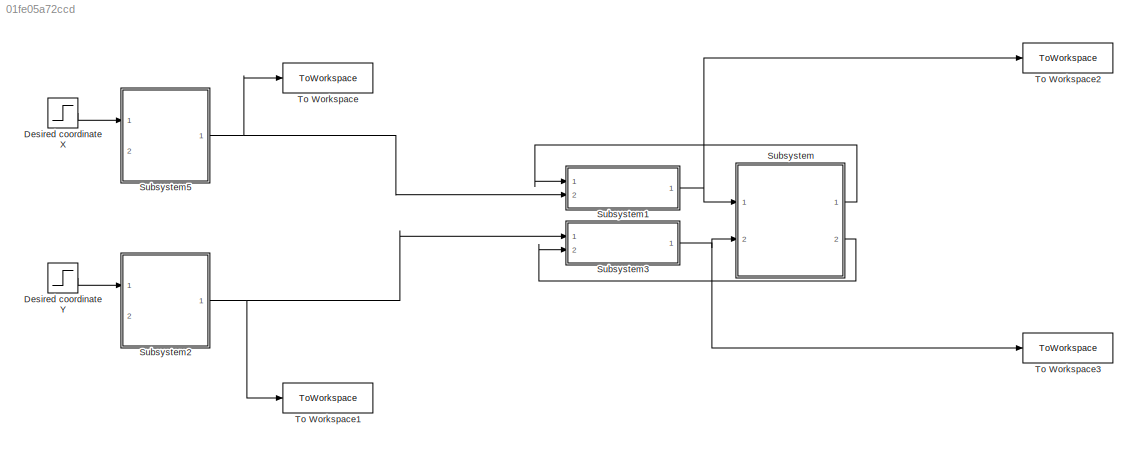
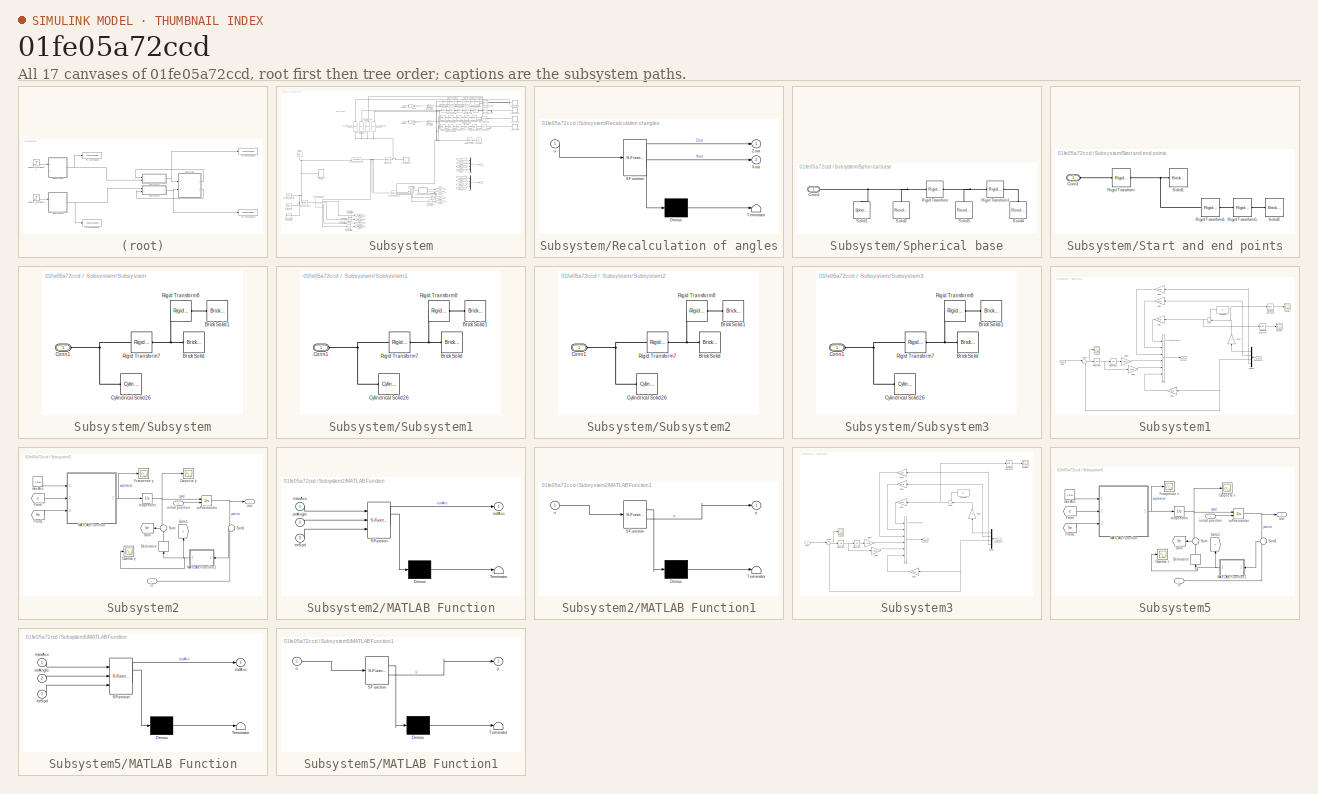
[diagram: thumbnail index - all 17 canvases of the model, root first then tree order]
MODEL slx_01fe05a72ccd
KIND model
CONFIG AbsTol = auto
CONFIG EnableMultiTasking = on
CONFIG FixedStep = auto
CONFIG InitFcn = Innertia_trajectory_code;
CONFIG MaxStep = 1e-4
CONFIG MinStep = auto
CONFIG RelTol = 1e-3
CONFIG SampleTimeConstraint = Unconstrained
CONFIG SolverName = ode23s
CONFIG StartTime = 0.0
CONFIG StopTime = 12
BLOCK [Step] Desired coordinate X
  After = -1
  Before = 1
  SampleTime = 0
  Time = 30
BLOCK [Step] Desired coordinate Y
  After = -1
  Before = 1
  SampleTime = 0
  Time = 30
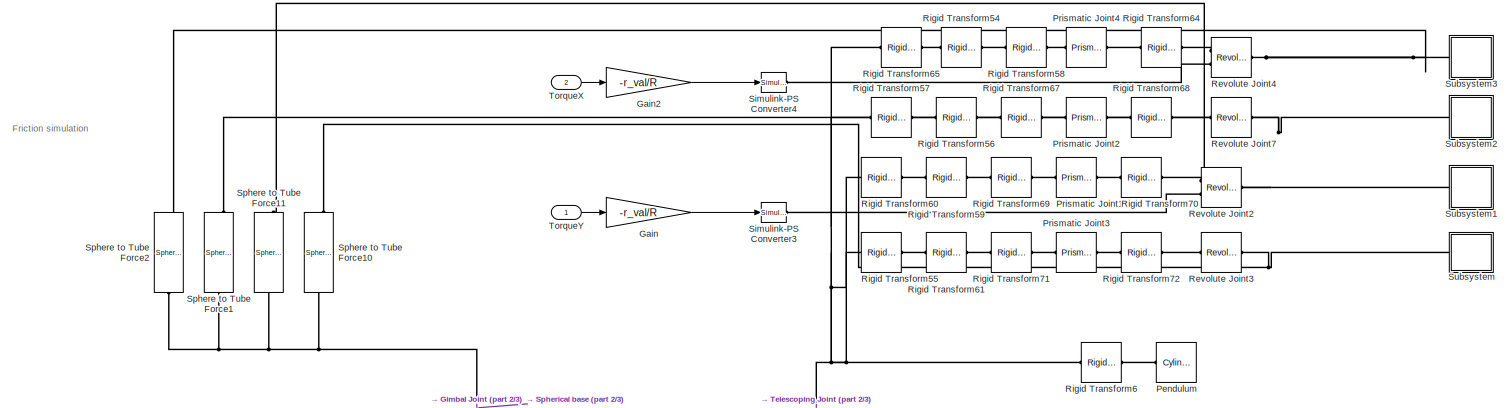
[diagram: Subsystem - part 1/3, full width, top band]
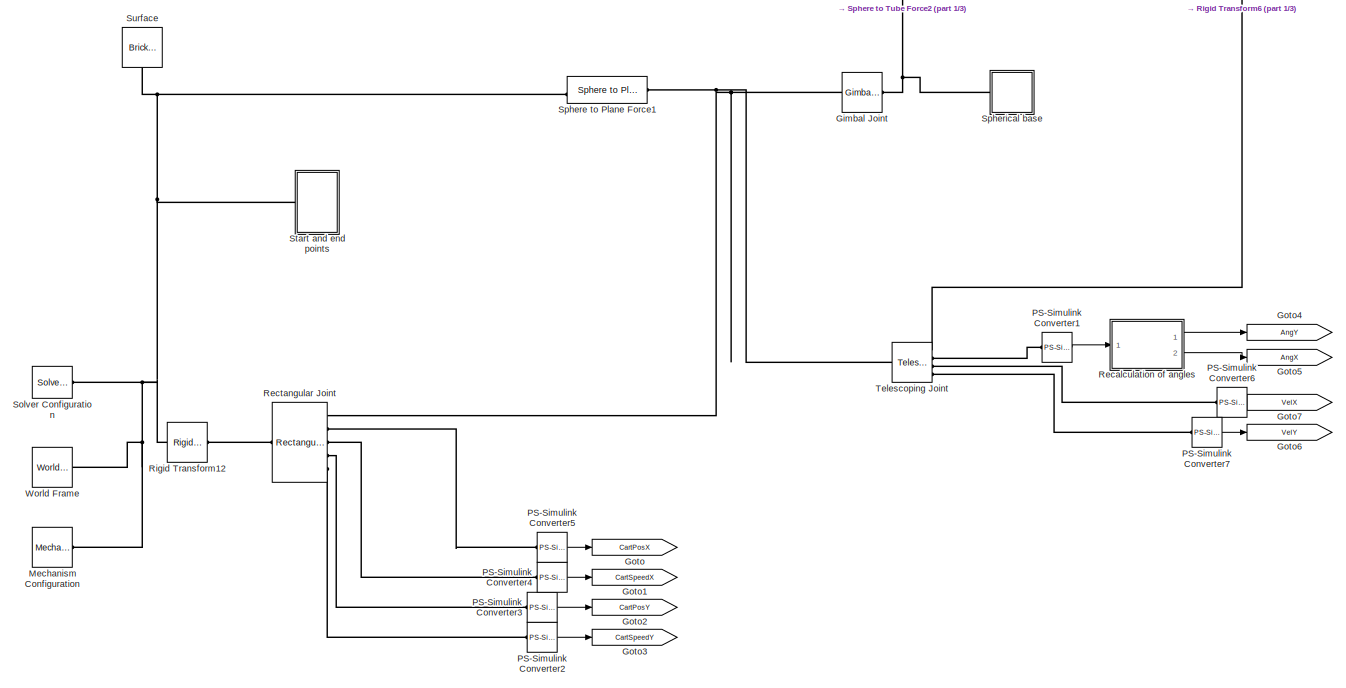
[diagram: Subsystem - part 2/3, bottom center region]
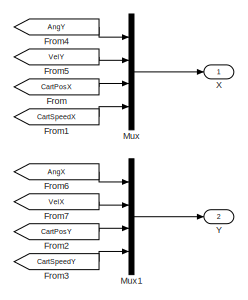
[diagram: Subsystem - part 3/3, middle right region]
BLOCK [SubSystem] Subsystem
  Ports = [2, 2]
  RequestExecContextInheritance = off
BLOCK [From] Subsystem/From
  GotoTag = CartPosX
  TagVisibility = global
BLOCK [From] Subsystem/From1
  GotoTag = CartSpeedX
  TagVisibility = global
BLOCK [From] Subsystem/From2
  GotoTag = CartPosY
  TagVisibility = global
BLOCK [From] Subsystem/From3
  GotoTag = CartSpeedY
  TagVisibility = global
BLOCK [From] Subsystem/From4
  GotoTag = AngY
  TagVisibility = global
BLOCK [From] Subsystem/From5
  GotoTag = VelY
  TagVisibility = global
BLOCK [From] Subsystem/From6
  GotoTag = AngX
  TagVisibility = global
BLOCK [From] Subsystem/From7
  GotoTag = VelX
  TagVisibility = global
BLOCK [Gain] Subsystem/Gain
  Gain = -r_val/R
BLOCK [Gain] Subsystem/Gain2
  Gain = -r_val/R
BLOCK [Reference] Subsystem/Gimbal Joint  REF=sm_lib/Joints/Gimbal Joint
  Ports = [0, 0, 0, 0, 0, 1, 1]
  SourceBlock = sm_lib/Joints/Gimbal Joint
  SourceProductBaseCode = MS
  SourceType = Gimbal Joint
BLOCK [Goto] Subsystem/Goto
  GotoTag = CartPosX
  TagVisibility = global
BLOCK [Goto] Subsystem/Goto1
  GotoTag = CartSpeedX
  TagVisibility = global
BLOCK [Goto] Subsystem/Goto2
  GotoTag = CartPosY
  TagVisibility = global
BLOCK [Goto] Subsystem/Goto3
  GotoTag = CartSpeedY
  TagVisibility = global
BLOCK [Goto] Subsystem/Goto4
  GotoTag = AngY
  TagVisibility = global
BLOCK [Goto] Subsystem/Goto5
  GotoTag = AngX
  TagVisibility = global
BLOCK [Goto] Subsystem/Goto6
  GotoTag = VelY
  TagVisibility = global
BLOCK [Goto] Subsystem/Goto7
  GotoTag = VelX
  TagVisibility = global
BLOCK [Reference] Subsystem/Mechanism Configuration  REF=sm_lib/Utilities/Mechanism
Configuration
  Ports = [0, 0, 0, 0, 0, 0, 1]
  SourceBlock = sm_lib/Utilities/Mechanism\nConfiguration
  SourceProductBaseCode = MS
  SourceType = Mechanism\nConfiguration
BLOCK [Mux] Subsystem/Mux
  DisplayOption = bar
  Ports = [4, 1]
BLOCK [Mux] Subsystem/Mux1
  DisplayOption = bar
  Ports = [4, 1]
BLOCK [Reference] Subsystem/PS-Simulink Converter1  REF=nesl_utility/PS-Simulink
Converter
  Ports = [0, 1, 0, 0, 0, 1]
  SourceBlock = nesl_utility/PS-Simulink\nConverter
  SourceProductBaseCode = PW,SS
  SourceType = PS-Simulink\nConverter
BLOCK [Reference] Subsystem/PS-Simulink Converter2  REF=nesl_utility/PS-Simulink
Converter
  Ports = [0, 1, 0, 0, 0, 1]
  SourceBlock = nesl_utility/PS-Simulink\nConverter
  SourceProductBaseCode = PW,SS
  SourceType = PS-Simulink\nConverter
BLOCK [Reference] Subsystem/PS-Simulink Converter3  REF=nesl_utility/PS-Simulink
Converter
  Ports = [0, 1, 0, 0, 0, 1]
  SourceBlock = nesl_utility/PS-Simulink\nConverter
  SourceProductBaseCode = PW,SS
  SourceType = PS-Simulink\nConverter
BLOCK [Reference] Subsystem/PS-Simulink Converter4  REF=nesl_utility/PS-Simulink
Converter
  Ports = [0, 1, 0, 0, 0, 1]
  SourceBlock = nesl_utility/PS-Simulink\nConverter
  SourceProductBaseCode = PW,SS
  SourceType = PS-Simulink\nConverter
BLOCK [Reference] Subsystem/PS-Simulink Converter5  REF=nesl_utility/PS-Simulink
Converter
  Ports = [0, 1, 0, 0, 0, 1]
  SourceBlock = nesl_utility/PS-Simulink\nConverter
  SourceProductBaseCode = PW,SS
  SourceType = PS-Simulink\nConverter
BLOCK [Reference] Subsystem/PS-Simulink Converter6  REF=nesl_utility/PS-Simulink
Converter
  Ports = [0, 1, 0, 0, 0, 1]
  SourceBlock = nesl_utility/PS-Simulink\nConverter
  SourceProductBaseCode = PW,SS
  SourceType = PS-Simulink\nConverter
BLOCK [Reference] Subsystem/PS-Simulink Converter7  REF=nesl_utility/PS-Simulink
Converter
  Ports = [0, 1, 0, 0, 0, 1]
  SourceBlock = nesl_utility/PS-Simulink\nConverter
  SourceProductBaseCode = PW,SS
  SourceType = PS-Simulink\nConverter
BLOCK [Reference] Subsystem/Pendulum  REF=sm_lib/Body Elements/Cylindrical Solid
  NameLocation = top
  Ports = [0, 0, 0, 0, 0, 0, 1]
  SourceBlock = sm_lib/Body Elements/Cylindrical Solid
  SourceProductBaseCode = MS
  SourceType = Cylindrical Solid
BLOCK [Reference] Subsystem/Prismatic Joint1  REF=sm_lib/Joints/Prismatic
Joint
  Ports = [0, 0, 0, 0, 0, 1, 1]
  SourceBlock = sm_lib/Joints/Prismatic\nJoint
  SourceProductBaseCode = MS
  SourceType = Prismatic\nJoint
BLOCK [Reference] Subsystem/Prismatic Joint2  REF=sm_lib/Joints/Prismatic
Joint
  Ports = [0, 0, 0, 0, 0, 1, 1]
  SourceBlock = sm_lib/Joints/Prismatic\nJoint
  SourceProductBaseCode = MS
  SourceType = Prismatic\nJoint
BLOCK [Reference] Subsystem/Prismatic Joint3  REF=sm_lib/Joints/Prismatic
Joint
  Ports = [0, 0, 0, 0, 0, 1, 1]
  SourceBlock = sm_lib/Joints/Prismatic\nJoint
  SourceProductBaseCode = MS
  SourceType = Prismatic\nJoint
BLOCK [Reference] Subsystem/Prismatic Joint4  REF=sm_lib/Joints/Prismatic
Joint
  Ports = [0, 0, 0, 0, 0, 1, 1]
  SourceBlock = sm_lib/Joints/Prismatic\nJoint
  SourceProductBaseCode = MS
  SourceType = Prismatic\nJoint
BLOCK [SubSystem] Subsystem/Recalculation of angles
  ErrorFcn = Stateflow.Translate.translate
  PermitHierarchicalResolution = ExplicitOnly
  Ports = [1, 2]
  RequestExecContextInheritance = off
  SFBlockType = MATLAB Function
  TreatAsAtomicUnit = on
BLOCK [Demux] Subsystem/Recalculation of angles/ Demux 
  Outputs = 1
  Ports = [1, 1]
BLOCK [S-Function] Subsystem/Recalculation of angles/ SFunction 
  EnableBusSupport = on
  FunctionName = sf_sfun
  PortCounts = [1 3]
  Ports = [1, 3]
  SFcnIsStateOwnerBlock = off
  SFunctionDeploymentMode = off
  Tag = Stateflow S-Function 4
BLOCK [Terminator] Subsystem/Recalculation of angles/ Terminator 
BLOCK [Outport] Subsystem/Recalculation of angles/Xout
  Port = 2
  VectorParamsAs1DForOutWhenUnconnected = off
BLOCK [Outport] Subsystem/Recalculation of angles/Zout
  VectorParamsAs1DForOutWhenUnconnected = off
BLOCK [Inport] Subsystem/Recalculation of angles/u
BLOCK [Reference] Subsystem/Rectangular Joint  REF=sm_lib/Joints/Rectangular
Joint
  Ports = [0, 0, 0, 0, 0, 1, 5]
  SourceBlock = sm_lib/Joints/Rectangular\nJoint
  SourceProductBaseCode = MS
  SourceType = Rectangular\nJoint
BLOCK [Reference] Subsystem/Revolute Joint2  REF=sm_lib/Joints/Revolute Joint
  Ports = [0, 0, 0, 0, 0, 2, 1]
  SourceBlock = sm_lib/Joints/Revolute Joint
  SourceProductBaseCode = MS
  SourceType = Revolute Joint
BLOCK [Reference] Subsystem/Revolute Joint3  REF=sm_lib/Joints/Revolute Joint
  Ports = [0, 0, 0, 0, 0, 1, 1]
  SourceBlock = sm_lib/Joints/Revolute Joint
  SourceProductBaseCode = MS
  SourceType = Revolute Joint
BLOCK [Reference] Subsystem/Revolute Joint4  REF=sm_lib/Joints/Revolute Joint
  Ports = [0, 0, 0, 0, 0, 2, 1]
  SourceBlock = sm_lib/Joints/Revolute Joint
  SourceProductBaseCode = MS
  SourceType = Revolute Joint
BLOCK [Reference] Subsystem/Revolute Joint7  REF=sm_lib/Joints/Revolute Joint
  Ports = [0, 0, 0, 0, 0, 1, 1]
  SourceBlock = sm_lib/Joints/Revolute Joint
  SourceProductBaseCode = MS
  SourceType = Revolute Joint
BLOCK [Reference] Subsystem/Rigid Transform12  REF=sm_lib/Frames and
Transforms/Rigid
Transform
  Ports = [0, 0, 0, 0, 0, 1, 1]
  SourceBlock = sm_lib/Frames and\nTransforms/Rigid\nTransform
  SourceProductBaseCode = MS
  SourceType = Rigid\nTransform
BLOCK [Reference] Subsystem/Rigid Transform54  REF=sm_lib/Frames and
Transforms/Rigid
Transform
  Ports = [0, 0, 0, 0, 0, 1, 1]
  SourceBlock = sm_lib/Frames and\nTransforms/Rigid\nTransform
  SourceProductBaseCode = MS
  SourceType = Rigid\nTransform
BLOCK [Reference] Subsystem/Rigid Transform55  REF=sm_lib/Frames and
Transforms/Rigid
Transform
  Ports = [0, 0, 0, 0, 0, 1, 1]
  SourceBlock = sm_lib/Frames and\nTransforms/Rigid\nTransform
  SourceProductBaseCode = MS
  SourceType = Rigid\nTransform
BLOCK [Reference] Subsystem/Rigid Transform56  REF=sm_lib/Frames and
Transforms/Rigid
Transform
  Ports = [0, 0, 0, 0, 0, 1, 1]
  SourceBlock = sm_lib/Frames and\nTransforms/Rigid\nTransform
  SourceProductBaseCode = MS
  SourceType = Rigid\nTransform
BLOCK [Reference] Subsystem/Rigid Transform57  REF=sm_lib/Frames and
Transforms/Rigid
Transform
  Ports = [0, 0, 0, 0, 0, 1, 1]
  SourceBlock = sm_lib/Frames and\nTransforms/Rigid\nTransform
  SourceProductBaseCode = MS
  SourceType = Rigid\nTransform
BLOCK [Reference] Subsystem/Rigid Transform58  REF=sm_lib/Frames and
Transforms/Rigid
Transform
  Ports = [0, 0, 0, 0, 0, 1, 1]
  SourceBlock = sm_lib/Frames and\nTransforms/Rigid\nTransform
  SourceProductBaseCode = MS
  SourceType = Rigid\nTransform
BLOCK [Reference] Subsystem/Rigid Transform59  REF=sm_lib/Frames and
Transforms/Rigid
Transform
  Ports = [0, 0, 0, 0, 0, 1, 1]
  SourceBlock = sm_lib/Frames and\nTransforms/Rigid\nTransform
  SourceProductBaseCode = MS
  SourceType = Rigid\nTransform
BLOCK [Reference] Subsystem/Rigid Transform6  REF=sm_lib/Frames and
Transforms/Rigid
Transform
  Ports = [0, 0, 0, 0, 0, 1, 1]
  SourceBlock = sm_lib/Frames and\nTransforms/Rigid\nTransform
  SourceProductBaseCode = MS
  SourceType = Rigid\nTransform
BLOCK [Reference] Subsystem/Rigid Transform60  REF=sm_lib/Frames and
Transforms/Rigid
Transform
  Ports = [0, 0, 0, 0, 0, 1, 1]
  SourceBlock = sm_lib/Frames and\nTransforms/Rigid\nTransform
  SourceProductBaseCode = MS
  SourceType = Rigid\nTransform
BLOCK [Reference] Subsystem/Rigid Transform61  REF=sm_lib/Frames and
Transforms/Rigid
Transform
  Ports = [0, 0, 0, 0, 0, 1, 1]
  SourceBlock = sm_lib/Frames and\nTransforms/Rigid\nTransform
  SourceProductBaseCode = MS
  SourceType = Rigid\nTransform
BLOCK [Reference] Subsystem/Rigid Transform64  REF=sm_lib/Frames and
Transforms/Rigid
Transform
  Ports = [0, 0, 0, 0, 0, 1, 1]
  SourceBlock = sm_lib/Frames and\nTransforms/Rigid\nTransform
  SourceProductBaseCode = MS
  SourceType = Rigid\nTransform
BLOCK [Reference] Subsystem/Rigid Transform65  REF=sm_lib/Frames and
Transforms/Rigid
Transform
  Ports = [0, 0, 0, 0, 0, 1, 1]
  SourceBlock = sm_lib/Frames and\nTransforms/Rigid\nTransform
  SourceProductBaseCode = MS
  SourceType = Rigid\nTransform
BLOCK [Reference] Subsystem/Rigid Transform67  REF=sm_lib/Frames and
Transforms/Rigid
Transform
  Ports = [0, 0, 0, 0, 0, 1, 1]
  SourceBlock = sm_lib/Frames and\nTransforms/Rigid\nTransform
  SourceProductBaseCode = MS
  SourceType = Rigid\nTransform
BLOCK [Reference] Subsystem/Rigid Transform68  REF=sm_lib/Frames and
Transforms/Rigid
Transform
  Ports = [0, 0, 0, 0, 0, 1, 1]
  SourceBlock = sm_lib/Frames and\nTransforms/Rigid\nTransform
  SourceProductBaseCode = MS
  SourceType = Rigid\nTransform
BLOCK [Reference] Subsystem/Rigid Transform69  REF=sm_lib/Frames and
Transforms/Rigid
Transform
  Ports = [0, 0, 0, 0, 0, 1, 1]
  SourceBlock = sm_lib/Frames and\nTransforms/Rigid\nTransform
  SourceProductBaseCode = MS
  SourceType = Rigid\nTransform
BLOCK [Reference] Subsystem/Rigid Transform70  REF=sm_lib/Frames and
Transforms/Rigid
Transform
  Ports = [0, 0, 0, 0, 0, 1, 1]
  SourceBlock = sm_lib/Frames and\nTransforms/Rigid\nTransform
  SourceProductBaseCode = MS
  SourceType = Rigid\nTransform
BLOCK [Reference] Subsystem/Rigid Transform71  REF=sm_lib/Frames and
Transforms/Rigid
Transform
  Ports = [0, 0, 0, 0, 0, 1, 1]
  SourceBlock = sm_lib/Frames and\nTransforms/Rigid\nTransform
  SourceProductBaseCode = MS
  SourceType = Rigid\nTransform
BLOCK [Reference] Subsystem/Rigid Transform72  REF=sm_lib/Frames and
Transforms/Rigid
Transform
  Ports = [0, 0, 0, 0, 0, 1, 1]
  SourceBlock = sm_lib/Frames and\nTransforms/Rigid\nTransform
  SourceProductBaseCode = MS
  SourceType = Rigid\nTransform
BLOCK [Reference] Subsystem/Simulink-PS Converter3  REF=nesl_utility/Simulink-PS
Converter
  Ports = [1, 0, 0, 0, 0, 0, 1]
  SourceBlock = nesl_utility/Simulink-PS\nConverter
  SourceProductBaseCode = PW,SS
  SourceType = Simulink-PS\nConverter
BLOCK [Reference] Subsystem/Simulink-PS Converter4  REF=nesl_utility/Simulink-PS
Converter
  Ports = [1, 0, 0, 0, 0, 0, 1]
  SourceBlock = nesl_utility/Simulink-PS\nConverter
  SourceProductBaseCode = PW,SS
  SourceType = Simulink-PS\nConverter
BLOCK [Reference] Subsystem/Solver Configuration  REF=nesl_utility/Solver
Configuration
  Ports = [0, 0, 0, 0, 0, 0, 1]
  SourceBlock = nesl_utility/Solver\nConfiguration
  SourceProductBaseCode = PW,SS
  SourceType = Solver\nConfiguration
BLOCK [Reference] Subsystem/Sphere to Plane Force1  REF=Contact_Forces_Lib/3D/Sphere to Plane Force
  Ports = [0, 1, 0, 0, 0, 1, 1]
  SourceBlock = Contact_Forces_Lib/3D/Sphere to Plane Force
  SourceProductName = Simscape Multibody Contact Forces Library
  SourceType = Sphere to Plane Force
BLOCK [Reference] Subsystem/Sphere to Tube Force1  REF=Contact_Forces_Lib/3D/Sphere to Tube Force
  NameLocation = left
  Ports = [0, 1, 0, 0, 0, 1, 1]
  SourceBlock = Contact_Forces_Lib/3D/Sphere to Tube Force
  SourceProductName = Simscape Multibody Contact Forces Library
  SourceType = Sphere to Tube Force
BLOCK [Reference] Subsystem/Sphere to Tube Force10  REF=Contact_Forces_Lib/3D/Sphere to Tube Force
  NameLocation = left
  Ports = [0, 1, 0, 0, 0, 1, 1]
  SourceBlock = Contact_Forces_Lib/3D/Sphere to Tube Force
  SourceProductName = Simscape Multibody Contact Forces Library
  SourceType = Sphere to Tube Force
BLOCK [Reference] Subsystem/Sphere to Tube Force11  REF=Contact_Forces_Lib/3D/Sphere to Tube Force
  NameLocation = left
  Ports = [0, 1, 0, 0, 0, 1, 1]
  SourceBlock = Contact_Forces_Lib/3D/Sphere to Tube Force
  SourceProductName = Simscape Multibody Contact Forces Library
  SourceType = Sphere to Tube Force
BLOCK [Reference] Subsystem/Sphere to Tube Force2  REF=Contact_Forces_Lib/3D/Sphere to Tube Force
  NameLocation = left
  Ports = [0, 1, 0, 0, 0, 1, 1]
  SourceBlock = Contact_Forces_Lib/3D/Sphere to Tube Force
  SourceProductName = Simscape Multibody Contact Forces Library
  SourceType = Sphere to Tube Force
BLOCK [SubSystem] Subsystem/Spherical base
  Ports = [0, 0, 0, 0, 0, 1]
  RequestExecContextInheritance = off
BLOCK [PMIOPort] Subsystem/Spherical base/Conn1
  Side = Left
BLOCK [Reference] Subsystem/Spherical base/Rigid Transform  REF=sm_lib/Frames and
Transforms/Rigid
Transform
  Ports = [0, 0, 0, 0, 0, 1, 1]
  SourceBlock = sm_lib/Frames and\nTransforms/Rigid\nTransform
  SourceProductBaseCode = MS
  SourceType = Rigid\nTransform
BLOCK [Reference] Subsystem/Spherical base/Rigid Transform1  REF=sm_lib/Frames and
Transforms/Rigid
Transform
  Ports = [0, 0, 0, 0, 0, 1, 1]
  SourceBlock = sm_lib/Frames and\nTransforms/Rigid\nTransform
  SourceProductBaseCode = MS
  SourceType = Rigid\nTransform
BLOCK [Reference] Subsystem/Spherical base/Solid1  REF=sm_lib/Body Elements/Spherical Solid
  NameLocation = right
  Ports = [0, 0, 0, 0, 0, 0, 1]
  SourceBlock = sm_lib/Body Elements/Spherical Solid
  SourceProductBaseCode = MS
  SourceType = Spherical Solid
BLOCK [Reference] Subsystem/Spherical base/Solid2  REF=sm_lib/Body Elements/Revolved Solid
  NameLocation = right
  Ports = [0, 0, 0, 0, 0, 0, 1]
  SourceBlock = sm_lib/Body Elements/Revolved Solid
  SourceProductBaseCode = MS
  SourceType = Revolved Solid
BLOCK [Reference] Subsystem/Spherical base/Solid3  REF=sm_lib/Body Elements/Revolved Solid
  NameLocation = right
  Ports = [0, 0, 0, 0, 0, 0, 1]
  SourceBlock = sm_lib/Body Elements/Revolved Solid
  SourceProductBaseCode = MS
  SourceType = Revolved Solid
BLOCK [Reference] Subsystem/Spherical base/Solid4  REF=sm_lib/Body Elements/Revolved Solid
  NameLocation = right
  Ports = [0, 0, 0, 0, 0, 0, 1]
  SourceBlock = sm_lib/Body Elements/Revolved Solid
  SourceProductBaseCode = MS
  SourceType = Revolved Solid
BLOCK [SubSystem] Subsystem/Start and end points
  Ports = [0, 0, 0, 0, 0, 1]
  RequestExecContextInheritance = off
BLOCK [PMIOPort] Subsystem/Start and end points/Conn1
  Side = Left
BLOCK [Reference] Subsystem/Start and end points/Rigid Transform  REF=sm_lib/Frames and
Transforms/Rigid
Transform
  Ports = [0, 0, 0, 0, 0, 1, 1]
  SourceBlock = sm_lib/Frames and\nTransforms/Rigid\nTransform
  SourceProductBaseCode = MS
  SourceType = Rigid\nTransform
BLOCK [Reference] Subsystem/Start and end points/Rigid Transform1  REF=sm_lib/Frames and
Transforms/Rigid
Transform
  Ports = [0, 0, 0, 0, 0, 1, 1]
  SourceBlock = sm_lib/Frames and\nTransforms/Rigid\nTransform
  SourceProductBaseCode = MS
  SourceType = Rigid\nTransform
BLOCK [Reference] Subsystem/Start and end points/Rigid Transform5  REF=sm_lib/Frames and
Transforms/Rigid
Transform
  Ports = [0, 0, 0, 0, 0, 1, 1]
  SourceBlock = sm_lib/Frames and\nTransforms/Rigid\nTransform
  SourceProductBaseCode = MS
  SourceType = Rigid\nTransform
BLOCK [Reference] Subsystem/Start and end points/Solid1  REF=sm_lib/Body Elements/Brick Solid
  NameLocation = top
  Ports = [0, 0, 0, 0, 0, 0, 1]
  SourceBlock = sm_lib/Body Elements/Brick Solid
  SourceProductBaseCode = MS
  SourceType = Brick Solid
BLOCK [Reference] Subsystem/Start and end points/Solid2  REF=sm_lib/Body Elements/Brick Solid
  NameLocation = top
  Ports = [0, 0, 0, 0, 0, 0, 1]
  SourceBlock = sm_lib/Body Elements/Brick Solid
  SourceProductBaseCode = MS
  SourceType = Brick Solid
BLOCK [SubSystem] Subsystem/Subsystem
  Ports = [0, 0, 0, 0, 0, 1]
  RequestExecContextInheritance = off
BLOCK [Reference] Subsystem/Subsystem/Brick Solid  REF=sm_lib/Body Elements/Brick Solid
  NameLocation = top
  Ports = [0, 0, 0, 0, 0, 0, 1]
  SourceBlock = sm_lib/Body Elements/Brick Solid
  SourceProductBaseCode = MS
  SourceType = Brick Solid
BLOCK [Reference] Subsystem/Subsystem/Brick Solid1  REF=sm_lib/Body Elements/Brick Solid
  NameLocation = top
  Ports = [0, 0, 0, 0, 0, 0, 1]
  SourceBlock = sm_lib/Body Elements/Brick Solid
  SourceProductBaseCode = MS
  SourceType = Brick Solid
BLOCK [PMIOPort] Subsystem/Subsystem/Conn1
  Side = Left
BLOCK [Reference] Subsystem/Subsystem/Cylindrical Solid26  REF=sm_lib/Body Elements/Cylindrical Solid
  NameLocation = top
  Ports = [0, 0, 0, 0, 0, 0, 1]
  SourceBlock = sm_lib/Body Elements/Cylindrical Solid
  SourceProductBaseCode = MS
  SourceType = Cylindrical Solid
BLOCK [Reference] Subsystem/Subsystem/Rigid Transform7  REF=sm_lib/Frames and
Transforms/Rigid
Transform
  Ports = [0, 0, 0, 0, 0, 1, 1]
  SourceBlock = sm_lib/Frames and\nTransforms/Rigid\nTransform
  SourceProductBaseCode = MS
  SourceType = Rigid\nTransform
BLOCK [Reference] Subsystem/Subsystem/Rigid Transform8  REF=sm_lib/Frames and
Transforms/Rigid
Transform
  Ports = [0, 0, 0, 0, 0, 1, 1]
  SourceBlock = sm_lib/Frames and\nTransforms/Rigid\nTransform
  SourceProductBaseCode = MS
  SourceType = Rigid\nTransform
BLOCK [SubSystem] Subsystem/Subsystem1
  Ports = [0, 0, 0, 0, 0, 1]
  RequestExecContextInheritance = off
BLOCK [Reference] Subsystem/Subsystem1/Brick Solid  REF=sm_lib/Body Elements/Brick Solid
  NameLocation = top
  Ports = [0, 0, 0, 0, 0, 0, 1]
  SourceBlock = sm_lib/Body Elements/Brick Solid
  SourceProductBaseCode = MS
  SourceType = Brick Solid
BLOCK [Reference] Subsystem/Subsystem1/Brick Solid1  REF=sm_lib/Body Elements/Brick Solid
  NameLocation = top
  Ports = [0, 0, 0, 0, 0, 0, 1]
  SourceBlock = sm_lib/Body Elements/Brick Solid
  SourceProductBaseCode = MS
  SourceType = Brick Solid
BLOCK [PMIOPort] Subsystem/Subsystem1/Conn1
  Side = Left
BLOCK [Reference] Subsystem/Subsystem1/Cylindrical Solid26  REF=sm_lib/Body Elements/Cylindrical Solid
  NameLocation = top
  Ports = [0, 0, 0, 0, 0, 0, 1]
  SourceBlock = sm_lib/Body Elements/Cylindrical Solid
  SourceProductBaseCode = MS
  SourceType = Cylindrical Solid
BLOCK [Reference] Subsystem/Subsystem1/Rigid Transform7  REF=sm_lib/Frames and
Transforms/Rigid
Transform
  Ports = [0, 0, 0, 0, 0, 1, 1]
  SourceBlock = sm_lib/Frames and\nTransforms/Rigid\nTransform
  SourceProductBaseCode = MS
  SourceType = Rigid\nTransform
BLOCK [Reference] Subsystem/Subsystem1/Rigid Transform8  REF=sm_lib/Frames and
Transforms/Rigid
Transform
  Ports = [0, 0, 0, 0, 0, 1, 1]
  SourceBlock = sm_lib/Frames and\nTransforms/Rigid\nTransform
  SourceProductBaseCode = MS
  SourceType = Rigid\nTransform
BLOCK [SubSystem] Subsystem/Subsystem2
  Ports = [0, 0, 0, 0, 0, 1]
  RequestExecContextInheritance = off
BLOCK [Reference] Subsystem/Subsystem2/Brick Solid  REF=sm_lib/Body Elements/Brick Solid
  NameLocation = top
  Ports = [0, 0, 0, 0, 0, 0, 1]
  SourceBlock = sm_lib/Body Elements/Brick Solid
  SourceProductBaseCode = MS
  SourceType = Brick Solid
BLOCK [Reference] Subsystem/Subsystem2/Brick Solid1  REF=sm_lib/Body Elements/Brick Solid
  NameLocation = top
  Ports = [0, 0, 0, 0, 0, 0, 1]
  SourceBlock = sm_lib/Body Elements/Brick Solid
  SourceProductBaseCode = MS
  SourceType = Brick Solid
BLOCK [PMIOPort] Subsystem/Subsystem2/Conn1
  Side = Left
BLOCK [Reference] Subsystem/Subsystem2/Cylindrical Solid26  REF=sm_lib/Body Elements/Cylindrical Solid
  NameLocation = top
  Ports = [0, 0, 0, 0, 0, 0, 1]
  SourceBlock = sm_lib/Body Elements/Cylindrical Solid
  SourceProductBaseCode = MS
  SourceType = Cylindrical Solid
BLOCK [Reference] Subsystem/Subsystem2/Rigid Transform7  REF=sm_lib/Frames and
Transforms/Rigid
Transform
  Ports = [0, 0, 0, 0, 0, 1, 1]
  SourceBlock = sm_lib/Frames and\nTransforms/Rigid\nTransform
  SourceProductBaseCode = MS
  SourceType = Rigid\nTransform
BLOCK [Reference] Subsystem/Subsystem2/Rigid Transform8  REF=sm_lib/Frames and
Transforms/Rigid
Transform
  Ports = [0, 0, 0, 0, 0, 1, 1]
  SourceBlock = sm_lib/Frames and\nTransforms/Rigid\nTransform
  SourceProductBaseCode = MS
  SourceType = Rigid\nTransform
BLOCK [SubSystem] Subsystem/Subsystem3
  Ports = [0, 0, 0, 0, 0, 1]
  RequestExecContextInheritance = off
BLOCK [Reference] Subsystem/Subsystem3/Brick Solid  REF=sm_lib/Body Elements/Brick Solid
  NameLocation = top
  Ports = [0, 0, 0, 0, 0, 0, 1]
  SourceBlock = sm_lib/Body Elements/Brick Solid
  SourceProductBaseCode = MS
  SourceType = Brick Solid
BLOCK [Reference] Subsystem/Subsystem3/Brick Solid1  REF=sm_lib/Body Elements/Brick Solid
  NameLocation = top
  Ports = [0, 0, 0, 0, 0, 0, 1]
  SourceBlock = sm_lib/Body Elements/Brick Solid
  SourceProductBaseCode = MS
  SourceType = Brick Solid
BLOCK [PMIOPort] Subsystem/Subsystem3/Conn1
  Side = Left
BLOCK [Reference] Subsystem/Subsystem3/Cylindrical Solid26  REF=sm_lib/Body Elements/Cylindrical Solid
  NameLocation = top
  Ports = [0, 0, 0, 0, 0, 0, 1]
  SourceBlock = sm_lib/Body Elements/Cylindrical Solid
  SourceProductBaseCode = MS
  SourceType = Cylindrical Solid
BLOCK [Reference] Subsystem/Subsystem3/Rigid Transform7  REF=sm_lib/Frames and
Transforms/Rigid
Transform
  Ports = [0, 0, 0, 0, 0, 1, 1]
  SourceBlock = sm_lib/Frames and\nTransforms/Rigid\nTransform
  SourceProductBaseCode = MS
  SourceType = Rigid\nTransform
BLOCK [Reference] Subsystem/Subsystem3/Rigid Transform8  REF=sm_lib/Frames and
Transforms/Rigid
Transform
  Ports = [0, 0, 0, 0, 0, 1, 1]
  SourceBlock = sm_lib/Frames and\nTransforms/Rigid\nTransform
  SourceProductBaseCode = MS
  SourceType = Rigid\nTransform
BLOCK [Reference] Subsystem/Surface  REF=sm_lib/Body Elements/Brick Solid
  NameLocation = left
  Ports = [0, 0, 0, 0, 0, 0, 1]
  SourceBlock = sm_lib/Body Elements/Brick Solid
  SourceProductBaseCode = MS
  SourceType = Brick Solid
BLOCK [Reference] Subsystem/Telescoping Joint  REF=sm_lib/Joints/Telescoping
Joint
  Ports = [0, 0, 0, 0, 0, 1, 4]
  SourceBlock = sm_lib/Joints/Telescoping\nJoint
  SourceProductBaseCode = MS
  SourceType = Telescoping\nJoint
BLOCK [Inport] Subsystem/TorqueX
  Port = 2
BLOCK [Inport] Subsystem/TorqueY
BLOCK [Reference] Subsystem/World Frame  REF=sm_lib/Frames and
Transforms/World Frame
  Ports = [0, 0, 0, 0, 0, 0, 1]
  SourceBlock = sm_lib/Frames and\nTransforms/World Frame
  SourceProductBaseCode = MS
  SourceType = World Frame
BLOCK [Outport] Subsystem/X
  VectorParamsAs1DForOutWhenUnconnected = off
BLOCK [Outport] Subsystem/Y
  Port = 2
  VectorParamsAs1DForOutWhenUnconnected = off
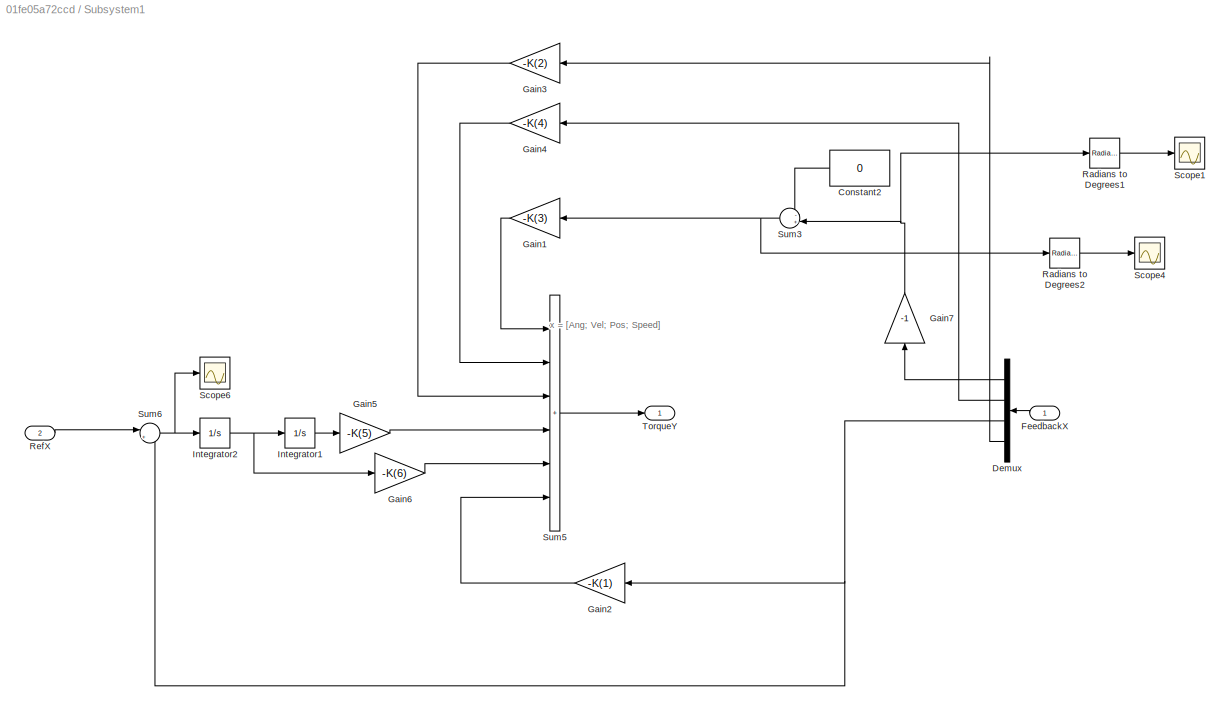
BLOCK [SubSystem] Subsystem1
  Ports = [2, 1]
  RequestExecContextInheritance = off
BLOCK [Constant] Subsystem1/Constant2
  Value = 0
BLOCK [Demux] Subsystem1/Demux
  Ports = [1, 4]
BLOCK [Inport] Subsystem1/FeedbackX
BLOCK [Gain] Subsystem1/Gain1
  Gain = -K(3)
  NameLocation = top
BLOCK [Gain] Subsystem1/Gain2
  Gain = -K(1)
  NameLocation = top
BLOCK [Gain] Subsystem1/Gain3
  Gain = -K(2)
  NameLocation = top
BLOCK [Gain] Subsystem1/Gain4
  Gain = -K(4)
  NameLocation = top
BLOCK [Gain] Subsystem1/Gain5
  Gain = -K(5)
  NameLocation = top
BLOCK [Gain] Subsystem1/Gain6
  Gain = -K(6)
BLOCK [Gain] Subsystem1/Gain7
  Commented = through
  Gain = -1
  NameLocation = left
BLOCK [Integrator] Subsystem1/Integrator1
  Ports = [1, 1]
BLOCK [Integrator] Subsystem1/Integrator2
  Ports = [1, 1]
BLOCK [Reference] Subsystem1/Radians to Degrees1  REF=simulink_extras/Transformations/Radians
to Degrees
  Ports = [1, 1]
  SourceBlock = simulink_extras/Transformations/Radians\nto Degrees
  SourceProductBaseCode = SL
  SourceType = RadiansToDegrees
BLOCK [Reference] Subsystem1/Radians to Degrees2  REF=simulink_extras/Transformations/Radians
to Degrees
  Ports = [1, 1]
  SourceBlock = simulink_extras/Transformations/Radians\nto Degrees
  SourceProductBaseCode = SL
  SourceType = RadiansToDegrees
BLOCK [Inport] Subsystem1/RefX
  Port = 2
BLOCK [Scope] Subsystem1/Scope1
  Floating = off
  NumInputPorts = 1
  Ports = [1]
  ScopeSpecificationString = Simulink.scopes.TimeScopeBlockCfg('CurrentConfiguration', extmgr.ConfigurationSet(extmgr.Configuration('Core','General UI',true),extmgr.Configuration('Core','Source UI',true),extmgr.Configuration('Sources','WiredSimulink',true,'DataLoggingVariableName','ScopeData1','DataLoggingSaveFormat','Array','DataLoggingDecimation','1','DataLoggingDecimateData',true),extmgr.Configuration('Visuals','Time Domai...<+1703ch>
BLOCK [Scope] Subsystem1/Scope4
  Floating = off
  NumInputPorts = 1
  Ports = [1]
  ScopeSpecificationString = Simulink.scopes.TimeScopeBlockCfg('CurrentConfiguration', extmgr.ConfigurationSet(extmgr.Configuration('Core','General UI',true),extmgr.Configuration('Core','Source UI',true),extmgr.Configuration('Sources','WiredSimulink',true,'DataLoggingVariableName','ScopeData2','DataLoggingSaveFormat','Array','DataLoggingDecimation','1','DataLoggingDecimateData',true),extmgr.Configuration('Visuals','Time Domai...<+1737ch>
BLOCK [Scope] Subsystem1/Scope6
  Floating = off
  NumInputPorts = 1
  Ports = [1]
  ScopeSpecificationString = Simulink.scopes.TimeScopeBlockCfg('CurrentConfiguration', extmgr.ConfigurationSet(extmgr.Configuration('Core','General UI',true),extmgr.Configuration('Core','Source UI',true),extmgr.Configuration('Sources','WiredSimulink',true,'DataLoggingVariableName','ScopeData1','DataLoggingSaveFormat','Array','DataLoggingDecimation','1','DataLoggingDecimateData',true),extmgr.Configuration('Visuals','Time Domai...<+1679ch>
BLOCK [Sum] Subsystem1/Sum3
  Inputs = -+|
  Ports = [2, 1]
BLOCK [Sum] Subsystem1/Sum5
  IconShape = rectangular
  Inputs = 6
  Ports = [6, 1]
BLOCK [Sum] Subsystem1/Sum6
  Inputs = |+-
  NameLocation = top
  Ports = [2, 1]
BLOCK [Outport] Subsystem1/TorqueY
  VectorParamsAs1DForOutWhenUnconnected = off
BLOCK [SubSystem] Subsystem2
  Ports = [2, 1]
  RequestExecContextInheritance = off
BLOCK [Derivative] Subsystem2/Derivative
  NameLocation = left
BLOCK [From] Subsystem2/From
  GotoTag = e
BLOCK [From] Subsystem2/From1
  GotoTag = Ve
BLOCK [Goto] Subsystem2/Goto
  GotoTag = Ve
BLOCK [Goto] Subsystem2/Goto1
  GotoTag = e
  NameLocation = left
BLOCK [SubSystem] Subsystem2/MATLAB Function
  ErrorFcn = Stateflow.Translate.translate
  PermitHierarchicalResolution = ExplicitOnly
  Ports = [3, 1]
  RequestExecContextInheritance = off
  SFBlockType = MATLAB Function
  TreatAsAtomicUnit = on
BLOCK [Demux] Subsystem2/MATLAB Function/ Demux 
  Outputs = 1
  Ports = [1, 1]
BLOCK [S-Function] Subsystem2/MATLAB Function/ SFunction 
  EnableBusSupport = on
  FunctionName = sf_sfun
  PortCounts = [3 2]
  Ports = [3, 2]
  SFcnIsStateOwnerBlock = off
  SFunctionDeploymentMode = off
  Tag = Stateflow S-Function 3
BLOCK [Terminator] Subsystem2/MATLAB Function/ Terminator 
BLOCK [Inport] Subsystem2/MATLAB Function/errAngle
  Port = 2
BLOCK [Inport] Subsystem2/MATLAB Function/errSpd
  Port = 3
BLOCK [Inport] Subsystem2/MATLAB Function/maxAcc
BLOCK [Outport] Subsystem2/MATLAB Function/outAcc
  VectorParamsAs1DForOutWhenUnconnected = off
BLOCK [SubSystem] Subsystem2/MATLAB Function1
  ErrorFcn = Stateflow.Translate.translate
  NameLocation = top
  PermitHierarchicalResolution = ExplicitOnly
  Ports = [1, 1]
  RequestExecContextInheritance = off
  SFBlockType = MATLAB Function
  TreatAsAtomicUnit = on
BLOCK [Demux] Subsystem2/MATLAB Function1/ Demux 
  Outputs = 1
  Ports = [1, 1]
BLOCK [S-Function] Subsystem2/MATLAB Function1/ SFunction 
  EnableBusSupport = on
  FunctionName = sf_sfun
  PortCounts = [1 2]
  Ports = [1, 2]
  SFcnIsStateOwnerBlock = off
  SFunctionDeploymentMode = off
  Tag = Stateflow S-Function 5
BLOCK [Terminator] Subsystem2/MATLAB Function1/ Terminator 
BLOCK [Inport] Subsystem2/MATLAB Function1/u
BLOCK [Outport] Subsystem2/MATLAB Function1/y
BLOCK [Sum] Subsystem2/Sum
  Inputs = -+
  Ports = [2, 1]
BLOCK [Sum] Subsystem2/Sum1
  Inputs = -+
  Ports = [2, 1]
BLOCK [Inport] Subsystem2/in
BLOCK [Inport] Subsystem2/initial position
  Port = 2
BLOCK [Constant] Subsystem2/maxAcc
  Value = Value
BLOCK [Outport] Subsystem2/out
  VectorParamsAs1DForOutWhenUnconnected = off
BLOCK [Integrator] Subsystem2/toPositionInt
  InitialConditionSource = external
  Ports = [2, 1]
BLOCK [Integrator] Subsystem2/toSpeedInt
  LimitOutput = on
  LowerSaturationLimit = -maxSpd
  Ports = [1, 1]
  UpperSaturationLimit = maxSpd
BLOCK [Scope] Subsystem2/Ошибка y
  Floating = off
  NumInputPorts = 1
  Ports = [1]
  ScopeSpecificationString = Simulink.scopes.TimeScopeBlockCfg('CurrentConfiguration', extmgr.ConfigurationSet(extmgr.Configuration('Core','General UI',true),extmgr.Configuration('Core','Source UI',true),extmgr.Configuration('Sources','WiredSimulink',true,'DataLoggingVariableName','ScopeData2'),extmgr.Configuration('Visuals','Time Domain',true),extmgr.Configuration('Tools','Plot Navigation',true),extmgr.Configuration('Tools',...<+40ch>
BLOCK [Scope] Subsystem2/Скорость y
  Floating = off
  NumInputPorts = 1
  Ports = [1]
  ScopeSpecificationString = Simulink.scopes.TimeScopeBlockCfg('CurrentConfiguration', extmgr.ConfigurationSet(extmgr.Configuration('Core','General UI',true),extmgr.Configuration('Core','Source UI',true),extmgr.Configuration('Sources','WiredSimulink',true,'DataLoggingVariableName','ScopeData1'),extmgr.Configuration('Visuals','Time Domain',true),extmgr.Configuration('Tools','Plot Navigation',true),extmgr.Configuration('Tools',...<+40ch>
BLOCK [Scope] Subsystem2/Ускорение y
  Floating = off
  NumInputPorts = 1
  Ports = [1]
  ScopeSpecificationString = Simulink.scopes.TimeScopeBlockCfg('CurrentConfiguration', extmgr.ConfigurationSet(extmgr.Configuration('Core','General UI',true),extmgr.Configuration('Core','Source UI',true),extmgr.Configuration('Sources','WiredSimulink',true,'DataLoggingVariableName','ScopeData3'),extmgr.Configuration('Visuals','Time Domain',true),extmgr.Configuration('Tools','Plot Navigation',true),extmgr.Configuration('Tools',...<+40ch>
BLOCK [SubSystem] Subsystem3
  Ports = [2, 1]
  RequestExecContextInheritance = off
BLOCK [Constant] Subsystem3/Constant2
  Value = 0
BLOCK [Demux] Subsystem3/Demux
  Ports = [1, 4]
BLOCK [Inport] Subsystem3/FeedbackY
  Port = 2
BLOCK [Gain] Subsystem3/Gain1
  Gain = -K(3)
  NameLocation = top
BLOCK [Gain] Subsystem3/Gain2
  Gain = -K(1)
  NameLocation = top
BLOCK [Gain] Subsystem3/Gain3
  Gain = -K(2)
  NameLocation = top
BLOCK [Gain] Subsystem3/Gain4
  Gain = -K(4)
  NameLocation = top
BLOCK [Gain] Subsystem3/Gain5
  Gain = -K(5)
  NameLocation = top
BLOCK [Gain] Subsystem3/Gain6
  Gain = -K(6)
BLOCK [Gain] Subsystem3/Gain7
  Commented = through
  Gain = -1
  NameLocation = left
BLOCK [Integrator] Subsystem3/Integrator1
  Ports = [1, 1]
BLOCK [Integrator] Subsystem3/Integrator2
  Ports = [1, 1]
BLOCK [Reference] Subsystem3/Radians to Degrees2  REF=simulink_extras/Transformations/Radians
to Degrees
  Ports = [1, 1]
  SourceBlock = simulink_extras/Transformations/Radians\nto Degrees
  SourceProductBaseCode = SL
  SourceType = RadiansToDegrees
BLOCK [Inport] Subsystem3/RefY
BLOCK [Scope] Subsystem3/Scope4
  Floating = off
  NumInputPorts = 1
  Ports = [1]
  ScopeSpecificationString = Simulink.scopes.TimeScopeBlockCfg('CurrentConfiguration', extmgr.ConfigurationSet(extmgr.Configuration('Core','General UI',true),extmgr.Configuration('Core','Source UI',true),extmgr.Configuration('Sources','WiredSimulink',true,'DataLoggingVariableName','ScopeData1','DataLoggingSaveFormat','Array','DataLoggingDecimation','1','DataLoggingDecimateData',true),extmgr.Configuration('Visuals','Time Domai...<+1689ch>
BLOCK [Scope] Subsystem3/Scope6
  Floating = off
  NumInputPorts = 1
  Ports = [1]
  ScopeSpecificationString = Simulink.scopes.TimeScopeBlockCfg('CurrentConfiguration', extmgr.ConfigurationSet(extmgr.Configuration('Core','General UI',true),extmgr.Configuration('Core','Source UI',true),extmgr.Configuration('Sources','WiredSimulink',true,'DataLoggingVariableName','ScopeData1','DataLoggingSaveFormat','Array','DataLoggingDecimation','1','DataLoggingDecimateData',true),extmgr.Configuration('Visuals','Time Domai...<+1673ch>
BLOCK [Sum] Subsystem3/Sum3
  Inputs = -+|
  Ports = [2, 1]
BLOCK [Sum] Subsystem3/Sum5
  IconShape = rectangular
  Inputs = 6
  Ports = [6, 1]
BLOCK [Sum] Subsystem3/Sum6
  Inputs = |+-
  NameLocation = top
  Ports = [2, 1]
BLOCK [Outport] Subsystem3/TorqueX
  VectorParamsAs1DForOutWhenUnconnected = off
BLOCK [SubSystem] Subsystem5
  Ports = [2, 1]
  RequestExecContextInheritance = off
BLOCK [Derivative] Subsystem5/Derivative
  NameLocation = left
BLOCK [From] Subsystem5/From
  GotoTag = e
BLOCK [From] Subsystem5/From1
  GotoTag = Ve
BLOCK [Goto] Subsystem5/Goto
  GotoTag = Ve
BLOCK [Goto] Subsystem5/Goto1
  GotoTag = e
  NameLocation = left
BLOCK [SubSystem] Subsystem5/MATLAB Function
  ErrorFcn = Stateflow.Translate.translate
  PermitHierarchicalResolution = ExplicitOnly
  Ports = [3, 1]
  RequestExecContextInheritance = off
  SFBlockType = MATLAB Function
  TreatAsAtomicUnit = on
BLOCK [Demux] Subsystem5/MATLAB Function/ Demux 
  Outputs = 1
  Ports = [1, 1]
BLOCK [S-Function] Subsystem5/MATLAB Function/ SFunction 
  EnableBusSupport = on
  FunctionName = sf_sfun
  PortCounts = [3 2]
  Ports = [3, 2]
  SFcnIsStateOwnerBlock = off
  SFunctionDeploymentMode = off
  Tag = Stateflow S-Function 2
BLOCK [Terminator] Subsystem5/MATLAB Function/ Terminator 
BLOCK [Inport] Subsystem5/MATLAB Function/errAngle
  Port = 2
BLOCK [Inport] Subsystem5/MATLAB Function/errSpd
  Port = 3
BLOCK [Inport] Subsystem5/MATLAB Function/maxAcc
BLOCK [Outport] Subsystem5/MATLAB Function/outAcc
  VectorParamsAs1DForOutWhenUnconnected = off
BLOCK [SubSystem] Subsystem5/MATLAB Function1
  ErrorFcn = Stateflow.Translate.translate
  NameLocation = top
  PermitHierarchicalResolution = ExplicitOnly
  Ports = [1, 1]
  RequestExecContextInheritance = off
  SFBlockType = MATLAB Function
  TreatAsAtomicUnit = on
BLOCK [Demux] Subsystem5/MATLAB Function1/ Demux 
  Outputs = 1
  Ports = [1, 1]
BLOCK [S-Function] Subsystem5/MATLAB Function1/ SFunction 
  EnableBusSupport = on
  FunctionName = sf_sfun
  PortCounts = [1 2]
  Ports = [1, 2]
  SFcnIsStateOwnerBlock = off
  SFunctionDeploymentMode = off
  Tag = Stateflow S-Function 1
BLOCK [Terminator] Subsystem5/MATLAB Function1/ Terminator 
BLOCK [Inport] Subsystem5/MATLAB Function1/u
BLOCK [Outport] Subsystem5/MATLAB Function1/y
BLOCK [Sum] Subsystem5/Sum
  Inputs = -+
  Ports = [2, 1]
BLOCK [Sum] Subsystem5/Sum1
  Inputs = -+
  Ports = [2, 1]
BLOCK [Inport] Subsystem5/in
BLOCK [Inport] Subsystem5/initial position
  Port = 2
BLOCK [Constant] Subsystem5/maxAcc
  Value = Value
BLOCK [Outport] Subsystem5/out
  VectorParamsAs1DForOutWhenUnconnected = off
BLOCK [Integrator] Subsystem5/toPositionInt
  InitialConditionSource = external
  Ports = [2, 1]
BLOCK [Integrator] Subsystem5/toSpeedInt
  LimitOutput = on
  LowerSaturationLimit = -maxSpd
  Ports = [1, 1]
  UpperSaturationLimit = maxSpd
BLOCK [Scope] Subsystem5/Ошибка x
  Floating = off
  NumInputPorts = 1
  Ports = [1]
  ScopeSpecificationString = Simulink.scopes.TimeScopeBlockCfg('CurrentConfiguration', extmgr.ConfigurationSet(extmgr.Configuration('Core','General UI',true,'FigureColor',[1 1 1]),extmgr.Configuration('Core','Source UI',true),extmgr.Configuration('Sources','WiredSimulink',true,'DataLoggingVariableName','ScopeData6'),extmgr.Configuration('Visuals','Time Domain',true,'SerializedDisplays',{struct('MinYLimReal','-0.02501','MaxYLi...<+1541ch>
BLOCK [Scope] Subsystem5/Скорость x
  Floating = off
  NumInputPorts = 1
  Ports = [1]
  ScopeSpecificationString = Simulink.scopes.TimeScopeBlockCfg('CurrentConfiguration', extmgr.ConfigurationSet(extmgr.Configuration('Core','General UI',true,'FigureColor',[1 1 1]),extmgr.Configuration('Core','Source UI',true),extmgr.Configuration('Sources','WiredSimulink',true,'DataLoggingVariableName','ScopeData4'),extmgr.Configuration('Visuals','Time Domain',true,'SerializedDisplays',{struct('MinYLimReal','-0.05742','MaxYLi...<+1838ch>
BLOCK [Scope] Subsystem5/Ускорение x
  Floating = off
  NumInputPorts = 1
  Ports = [1]
  ScopeSpecificationString = Simulink.scopes.TimeScopeBlockCfg('CurrentConfiguration', extmgr.ConfigurationSet(extmgr.Configuration('Core','General UI',true,'FigureColor',[1 1 1]),extmgr.Configuration('Core','Source UI',true),extmgr.Configuration('Sources','WiredSimulink',true,'DataLoggingVariableName','ScopeData5'),extmgr.Configuration('Visuals','Time Domain',true,'SerializedDisplays',{struct('MinYLimReal','-0.625','MaxYLimR...<+1533ch>
BLOCK [ToWorkspace] To Workspace
  Commented = on
  FixptAsFi = on
  MaxDataPoints = inf
  Ports = [1]
  SampleTime = -1
  SaveFormat = Timeseries
  VariableName = x_wanted
BLOCK [ToWorkspace] To Workspace1
  Commented = on
  FixptAsFi = on
  MaxDataPoints = inf
  Ports = [1]
  SampleTime = -1
  SaveFormat = Timeseries
  VariableName = y_wanted
BLOCK [ToWorkspace] To Workspace2
  Commented = on
  FixptAsFi = on
  MaxDataPoints = inf
  Ports = [1]
  SampleTime = -1
  SaveFormat = Timeseries
  VariableName = torque_y
BLOCK [ToWorkspace] To Workspace3
  Commented = on
  FixptAsFi = on
  MaxDataPoints = inf
  Ports = [1]
  SampleTime = -1
  SaveFormat = Timeseries
  VariableName = torque_x
ANNOTATION Subsystem: Friction simulation
ANNOTATION Subsystem1: x = [Ang; Vel; Pos; Speed]
ANNOTATION Subsystem3: x = [Ang; Vel; Pos; Speed]
LINE Desired coordinate X:1 -> Subsystem5:1
LINE Desired coordinate Y:1 -> Subsystem2:1
LINE Subsystem/From1:1 -> Subsystem/Mux:4
LINE Subsystem/From2:1 -> Subsystem/Mux1:3
LINE Subsystem/From3:1 -> Subsystem/Mux1:4
LINE Subsystem/From4:1 -> Subsystem/Mux:1
LINE Subsystem/From5:1 -> Subsystem/Mux:2
LINE Subsystem/From6:1 -> Subsystem/Mux1:1
LINE Subsystem/From7:1 -> Subsystem/Mux1:2
LINE Subsystem/From:1 -> Subsystem/Mux:3
LINE Subsystem/Gain2:1 -> Subsystem/Simulink-PS Converter4:1
LINE Subsystem/Gain:1 -> Subsystem/Simulink-PS Converter3:1
LINE Subsystem/Mux1:1 -> Subsystem/Y:1
LINE Subsystem/Mux:1 -> Subsystem/X:1
LINE Subsystem/PS-Simulink Converter1:1 -> Subsystem/Recalculation of angles:1
LINE Subsystem/PS-Simulink Converter2:1 -> Subsystem/Goto3:1
LINE Subsystem/PS-Simulink Converter3:1 -> Subsystem/Goto2:1
LINE Subsystem/PS-Simulink Converter4:1 -> Subsystem/Goto1:1
LINE Subsystem/PS-Simulink Converter5:1 -> Subsystem/Goto:1
LINE Subsystem/PS-Simulink Converter6:1 -> Subsystem/Goto7:1
LINE Subsystem/PS-Simulink Converter7:1 -> Subsystem/Goto6:1
LINE Subsystem/Recalculation of angles:1 -> Subsystem/Goto4:1
LINE Subsystem/Recalculation of angles:2 -> Subsystem/Goto5:1
LINE Subsystem/TorqueX:1 -> Subsystem/Gain2:1
LINE Subsystem/TorqueY:1 -> Subsystem/Gain:1
LINE Subsystem1/Constant2:1 -> Subsystem1/Sum3:1
LINE Subsystem1/Demux:1 -> Subsystem1/Gain7:1
LINE Subsystem1/Demux:2 -> Subsystem1/Gain4:1
NET Subsystem1/Demux:3 -> Subsystem1/Gain2:1, Subsystem1/Sum6:2
LINE Subsystem1/Demux:4 -> Subsystem1/Gain3:1
LINE Subsystem1/FeedbackX:1 -> Subsystem1/Demux:1
LINE Subsystem1/Gain1:1 -> Subsystem1/Sum5:1
LINE Subsystem1/Gain2:1 -> Subsystem1/Sum5:6
LINE Subsystem1/Gain3:1 -> Subsystem1/Sum5:3
LINE Subsystem1/Gain4:1 -> Subsystem1/Sum5:2
LINE Subsystem1/Gain5:1 -> Subsystem1/Sum5:4
LINE Subsystem1/Gain6:1 -> Subsystem1/Sum5:5
NET Subsystem1/Gain7:1 -> Subsystem1/Radians to Degrees1:1, Subsystem1/Sum3:2
LINE Subsystem1/Integrator1:1 -> Subsystem1/Gain5:1
NET Subsystem1/Integrator2:1 -> Subsystem1/Gain6:1, Subsystem1/Integrator1:1
LINE Subsystem1/Radians to Degrees1:1 -> Subsystem1/Scope1:1
LINE Subsystem1/Radians to Degrees2:1 -> Subsystem1/Scope4:1
LINE Subsystem1/RefX:1 -> Subsystem1/Sum6:1
NET Subsystem1/Sum3:1 -> Subsystem1/Gain1:1, Subsystem1/Radians to Degrees2:1
LINE Subsystem1/Sum5:1 -> Subsystem1/TorqueY:1
NET Subsystem1/Sum6:1 -> Subsystem1/Integrator2:1, Subsystem1/Scope6:1
NET Subsystem1:1 -> Subsystem:1, To Workspace2:1
LINE Subsystem2/Derivative:1 -> Subsystem2/Sum:2
LINE Subsystem2/From1:1 -> Subsystem2/MATLAB Function:3
LINE Subsystem2/From:1 -> Subsystem2/MATLAB Function:2
NET Subsystem2/MATLAB Function1:1 -> Subsystem2/Derivative:1, Subsystem2/Goto1:1, Subsystem2/Ошибка y:1
NET Subsystem2/MATLAB Function:1 -> Subsystem2/toSpeedInt:1, Subsystem2/Ускорение y:1
LINE Subsystem2/Sum1:1 -> Subsystem2/MATLAB Function1:1
LINE Subsystem2/Sum:1 -> Subsystem2/Goto:1
LINE Subsystem2/in:1 -> Subsystem2/Sum1:2
LINE Subsystem2/initial position:1 -> Subsystem2/toPositionInt:2
LINE Subsystem2/maxAcc:1 -> Subsystem2/MATLAB Function:1
NET Subsystem2/toPositionInt:1 -> Subsystem2/Sum1:1, Subsystem2/out:1
NET Subsystem2/toSpeedInt:1 -> Subsystem2/Sum:1, Subsystem2/toPositionInt:1, Subsystem2/Скорость y:1
NET Subsystem2:1 -> Subsystem3:1, To Workspace1:1
LINE Subsystem3/Constant2:1 -> Subsystem3/Sum3:1
LINE Subsystem3/Demux:1 -> Subsystem3/Gain7:1
LINE Subsystem3/Demux:2 -> Subsystem3/Gain4:1
NET Subsystem3/Demux:3 -> Subsystem3/Gain2:1, Subsystem3/Sum6:2
LINE Subsystem3/Demux:4 -> Subsystem3/Gain3:1
LINE Subsystem3/FeedbackY:1 -> Subsystem3/Demux:1
LINE Subsystem3/Gain1:1 -> Subsystem3/Sum5:1
LINE Subsystem3/Gain2:1 -> Subsystem3/Sum5:6
LINE Subsystem3/Gain3:1 -> Subsystem3/Sum5:3
LINE Subsystem3/Gain4:1 -> Subsystem3/Sum5:2
LINE Subsystem3/Gain5:1 -> Subsystem3/Sum5:4
LINE Subsystem3/Gain6:1 -> Subsystem3/Sum5:5
LINE Subsystem3/Gain7:1 -> Subsystem3/Sum3:2
LINE Subsystem3/Integrator1:1 -> Subsystem3/Gain5:1
NET Subsystem3/Integrator2:1 -> Subsystem3/Gain6:1, Subsystem3/Integrator1:1
LINE Subsystem3/Radians to Degrees2:1 -> Subsystem3/Scope4:1
LINE Subsystem3/RefY:1 -> Subsystem3/Sum6:1
NET Subsystem3/Sum3:1 -> Subsystem3/Gain1:1, Subsystem3/Radians to Degrees2:1
LINE Subsystem3/Sum5:1 -> Subsystem3/TorqueX:1
NET Subsystem3/Sum6:1 -> Subsystem3/Integrator2:1, Subsystem3/Scope6:1
NET Subsystem3:1 -> Subsystem:2, To Workspace3:1
LINE Subsystem5/Derivative:1 -> Subsystem5/Sum:2
LINE Subsystem5/From1:1 -> Subsystem5/MATLAB Function:3
LINE Subsystem5/From:1 -> Subsystem5/MATLAB Function:2
NET Subsystem5/MATLAB Function1:1 -> Subsystem5/Derivative:1, Subsystem5/Goto1:1, Subsystem5/Ошибка x:1
NET Subsystem5/MATLAB Function:1 -> Subsystem5/toSpeedInt:1, Subsystem5/Ускорение x:1
LINE Subsystem5/Sum1:1 -> Subsystem5/MATLAB Function1:1
LINE Subsystem5/Sum:1 -> Subsystem5/Goto:1
LINE Subsystem5/in:1 -> Subsystem5/Sum1:2
LINE Subsystem5/initial position:1 -> Subsystem5/toPositionInt:2
LINE Subsystem5/maxAcc:1 -> Subsystem5/MATLAB Function:1
NET Subsystem5/toPositionInt:1 -> Subsystem5/Sum1:1, Subsystem5/out:1
NET Subsystem5/toSpeedInt:1 -> Subsystem5/Sum:1, Subsystem5/toPositionInt:1, Subsystem5/Скорость x:1
NET Subsystem5:1 -> Subsystem1:2, To Workspace:1
LINE Subsystem:1 -> Subsystem1:1
LINE Subsystem:2 -> Subsystem3:2
PNET net1: Subsystem/Gimbal Joint:LConn1 -- Subsystem/Rectangular Joint:RConn1 -- Subsystem/Sphere to Plane Force1:LConn1 -- Subsystem/Telescoping Joint:LConn1
PNET net2: Subsystem/Gimbal Joint:RConn1 -- Subsystem/Sphere to Tube Force10:LConn1 -- Subsystem/Sphere to Tube Force11:LConn1 -- Subsystem/Sphere to Tube Force1:LConn1 -- Subsystem/Sphere to Tube Force2:LConn1 -- Subsystem/Spherical base:LConn1
PNET net3: Subsystem/Mechanism Configuration:RConn1 -- Subsystem/Rigid Transform12:LConn1 -- Subsystem/Solver Configuration:RConn1 -- Subsystem/Sphere to Plane Force1:RConn1 -- Subsystem/Start and end points:LConn1 -- Subsystem/Surface:RConn1 -- Subsystem/World Frame:RConn1
PLINE Subsystem/PS-Simulink Converter1:LConn1 -- Subsystem/Telescoping Joint:RConn2
PLINE Subsystem/PS-Simulink Converter2:LConn1 -- Subsystem/Rectangular Joint:RConn5
PLINE Subsystem/PS-Simulink Converter3:LConn1 -- Subsystem/Rectangular Joint:RConn4
PLINE Subsystem/PS-Simulink Converter4:LConn1 -- Subsystem/Rectangular Joint:RConn3
PLINE Subsystem/PS-Simulink Converter5:LConn1 -- Subsystem/Rectangular Joint:RConn2
PLINE Subsystem/PS-Simulink Converter6:LConn1 -- Subsystem/Telescoping Joint:RConn3
PLINE Subsystem/PS-Simulink Converter7:LConn1 -- Subsystem/Telescoping Joint:RConn4
PLINE Subsystem/Pendulum:RConn1 -- Subsystem/Rigid Transform6:RConn1
PLINE Subsystem/Prismatic Joint1:LConn1 -- Subsystem/Rigid Transform69:RConn1
PLINE Subsystem/Prismatic Joint1:RConn1 -- Subsystem/Rigid Transform70:LConn1
PLINE Subsystem/Prismatic Joint2:LConn1 -- Subsystem/Rigid Transform67:RConn1
PLINE Subsystem/Prismatic Joint2:RConn1 -- Subsystem/Rigid Transform68:LConn1
PLINE Subsystem/Prismatic Joint3:LConn1 -- Subsystem/Rigid Transform71:RConn1
PLINE Subsystem/Prismatic Joint3:RConn1 -- Subsystem/Rigid Transform72:LConn1
PLINE Subsystem/Prismatic Joint4:LConn1 -- Subsystem/Rigid Transform58:RConn1
PLINE Subsystem/Prismatic Joint4:RConn1 -- Subsystem/Rigid Transform64:LConn1
PLINE Subsystem/Rectangular Joint:LConn1 -- Subsystem/Rigid Transform12:RConn1
PLINE Subsystem/Revolute Joint2:LConn1 -- Subsystem/Rigid Transform70:RConn1
PLINE Subsystem/Revolute Joint2:LConn2 -- Subsystem/Simulink-PS Converter3:RConn1
PNET net4: Subsystem/Revolute Joint2:RConn1 -- Subsystem/Sphere to Tube Force11:RConn1 -- Subsystem/Subsystem1:LConn1
PLINE Subsystem/Revolute Joint3:LConn1 -- Subsystem/Rigid Transform72:RConn1
PNET net5: Subsystem/Revolute Joint3:RConn1 -- Subsystem/Sphere to Tube Force10:RConn1 -- Subsystem/Subsystem:LConn1
PLINE Subsystem/Revolute Joint4:LConn1 -- Subsystem/Rigid Transform64:RConn1
PLINE Subsystem/Revolute Joint4:LConn2 -- Subsystem/Simulink-PS Converter4:RConn1
PNET net6: Subsystem/Revolute Joint4:RConn1 -- Subsystem/Sphere to Tube Force2:RConn1 -- Subsystem/Subsystem3:LConn1
PLINE Subsystem/Revolute Joint7:LConn1 -- Subsystem/Rigid Transform68:RConn1
PNET net7: Subsystem/Revolute Joint7:RConn1 -- Subsystem/Sphere to Tube Force1:RConn1 -- Subsystem/Subsystem2:LConn1
PLINE Subsystem/Rigid Transform54:LConn1 -- Subsystem/Rigid Transform65:RConn1
PLINE Subsystem/Rigid Transform54:RConn1 -- Subsystem/Rigid Transform58:LConn1
PNET net8: Subsystem/Rigid Transform55:LConn1 -- Subsystem/Rigid Transform57:LConn1 -- Subsystem/Rigid Transform60:LConn1 -- Subsystem/Rigid Transform65:LConn1 -- Subsystem/Rigid Transform6:LConn1 -- Subsystem/Telescoping Joint:RConn1
PLINE Subsystem/Rigid Transform55:RConn1 -- Subsystem/Rigid Transform61:LConn1
PLINE Subsystem/Rigid Transform56:LConn1 -- Subsystem/Rigid Transform57:RConn1
PLINE Subsystem/Rigid Transform56:RConn1 -- Subsystem/Rigid Transform67:LConn1
PLINE Subsystem/Rigid Transform59:LConn1 -- Subsystem/Rigid Transform60:RConn1
PLINE Subsystem/Rigid Transform59:RConn1 -- Subsystem/Rigid Transform69:LConn1
PLINE Subsystem/Rigid Transform61:RConn1 -- Subsystem/Rigid Transform71:LConn1
PNET net9: Subsystem/Spherical base/Conn1:RConn1 -- Subsystem/Spherical base/Rigid Transform:LConn1 -- Subsystem/Spherical base/Solid1:RConn1 -- Subsystem/Spherical base/Solid2:RConn1
PNET net10: Subsystem/Spherical base/Rigid Transform1:LConn1 -- Subsystem/Spherical base/Rigid Transform:RConn1 -- Subsystem/Spherical base/Solid3:RConn1
PLINE Subsystem/Spherical base/Rigid Transform1:RConn1 -- Subsystem/Spherical base/Solid4:RConn1
PLINE Subsystem/Start and end points/Conn1:RConn1 -- Subsystem/Start and end points/Rigid Transform:LConn1
PNET net11: Subsystem/Start and end points/Rigid Transform1:LConn1 -- Subsystem/Start and end points/Rigid Transform:RConn1 -- Subsystem/Start and end points/Solid1:RConn1
PLINE Subsystem/Start and end points/Rigid Transform1:RConn1 -- Subsystem/Start and end points/Rigid Transform5:LConn1
PLINE Subsystem/Start and end points/Rigid Transform5:RConn1 -- Subsystem/Start and end points/Solid2:RConn1
PLINE Subsystem/Subsystem/Brick Solid1:RConn1 -- Subsystem/Subsystem/Rigid Transform8:RConn1
PNET net12: Subsystem/Subsystem/Brick Solid:RConn1 -- Subsystem/Subsystem/Rigid Transform7:RConn1 -- Subsystem/Subsystem/Rigid Transform8:LConn1
PNET net13: Subsystem/Subsystem/Conn1:RConn1 -- Subsystem/Subsystem/Cylindrical Solid26:RConn1 -- Subsystem/Subsystem/Rigid Transform7:LConn1
PLINE Subsystem/Subsystem1/Brick Solid1:RConn1 -- Subsystem/Subsystem1/Rigid Transform8:RConn1
PNET net14: Subsystem/Subsystem1/Brick Solid:RConn1 -- Subsystem/Subsystem1/Rigid Transform7:RConn1 -- Subsystem/Subsystem1/Rigid Transform8:LConn1
PNET net15: Subsystem/Subsystem1/Conn1:RConn1 -- Subsystem/Subsystem1/Cylindrical Solid26:RConn1 -- Subsystem/Subsystem1/Rigid Transform7:LConn1
PLINE Subsystem/Subsystem2/Brick Solid1:RConn1 -- Subsystem/Subsystem2/Rigid Transform8:RConn1
PNET net16: Subsystem/Subsystem2/Brick Solid:RConn1 -- Subsystem/Subsystem2/Rigid Transform7:RConn1 -- Subsystem/Subsystem2/Rigid Transform8:LConn1
PNET net17: Subsystem/Subsystem2/Conn1:RConn1 -- Subsystem/Subsystem2/Cylindrical Solid26:RConn1 -- Subsystem/Subsystem2/Rigid Transform7:LConn1
PLINE Subsystem/Subsystem3/Brick Solid1:RConn1 -- Subsystem/Subsystem3/Rigid Transform8:RConn1
PNET net18: Subsystem/Subsystem3/Brick Solid:RConn1 -- Subsystem/Subsystem3/Rigid Transform7:RConn1 -- Subsystem/Subsystem3/Rigid Transform8:LConn1
PNET net19: Subsystem/Subsystem3/Conn1:RConn1 -- Subsystem/Subsystem3/Cylindrical Solid26:RConn1 -- Subsystem/Subsystem3/Rigid Transform7:LConn1
note: NET lines group one-source signal fan-out (src -> all destinations, sorted); 1:1 wires keep LINE; PNET lines group multi-terminal physical nets as a canonical sorted terminal list (undirected conserving connections); 2-terminal nets keep the pairwise PLINE form
CHART Subsystem5/MATLAB Function states=1 transitions=1
  STATE_LABEL 'eML_blk_kernel()'
  STATE_LABEL 'SCRIPT:\nfunction outAcc   = PlanerLogic( maxAcc, errAngle, errSpd )\n\ne = -errSpd * abs(errSpd) / (2 * maxAcc);\n\nif ( errAngle == e )\n    outAcc = maxAcc * sign(errSpd);\nelseif ( errAngle > e)\n    outAcc = maxAcc;\nelse\n    outAcc = -maxAcc;\nend\nend\n\n'
CHART Subsystem2/MATLAB Function states=1 transitions=1
  STATE_LABEL 'eML_blk_kernel()'
  STATE_LABEL 'SCRIPT:\nfunction outAcc   = PlanerLogic( maxAcc, errAngle, errSpd )\n\ne = -errSpd * abs(errSpd) / (2 * maxAcc);\n\nif ( errAngle == e )\n    outAcc = maxAcc * sign(errSpd);\nelseif ( errAngle > e)\n    outAcc = maxAcc;\nelse\n    outAcc = -maxAcc;\nend\nend\n\n'
CHART Subsystem/Recalculation of angles states=1 transitions=1
  STATE_LABEL 'eML_blk_kernel()'
  STATE_LABEL "SCRIPT:\nfunction [Zout, Xout] = fcn(u)\n\npersistent Z X\n\ntemp = quat2eul([u(1), u(2), u(3), u(4)], 'ZYX');\ntempZ = temp(1);\ntempX = temp(3);\n\nif isempty(Z)\n    Z = tempZ;\nelseif abs(tempZ - Z) > 0.1\n    Z = -tempZ;\nelse\n    Z = tempZ;\nend\n\nif isempty(X)\n    X = tempX;\nelseif abs(tempX - X) > 0.1\n    X = -tempX;\nelse\n    X = tempX;\nend\n\n% Zout = tempZ;\n% Xout = tempX;\nZout = Z;\nXout = X;\n"
CHART Subsystem2/MATLAB Function1 states=1 transitions=1
  STATE_LABEL 'eML_blk_kernel()'
  STATE_LABEL 'SCRIPT:\nfunction y = fcn(u)\nogr = 0.2\n\nif ((u < ogr)&(u > -ogr))\n    y =u;\nelse\n    y = ogr*sign(u);\nend\n\n'
CHART Subsystem5/MATLAB Function1 states=1 transitions=1
  STATE_LABEL 'eML_blk_kernel()'
  STATE_LABEL 'SCRIPT:\nfunction y = fcn(u)\nogr = 0.2\n\nif ((u < ogr)&(u > -ogr))\n    y =u;\nelse\n    y = ogr*sign(u);\nend\n\n'
CHART  states=0 transitions=0
CHART  states=0 transitions=0
CHART  states=0 transitions=0
CHART  states=0 transitions=0
CHART  states=0 transitions=0
